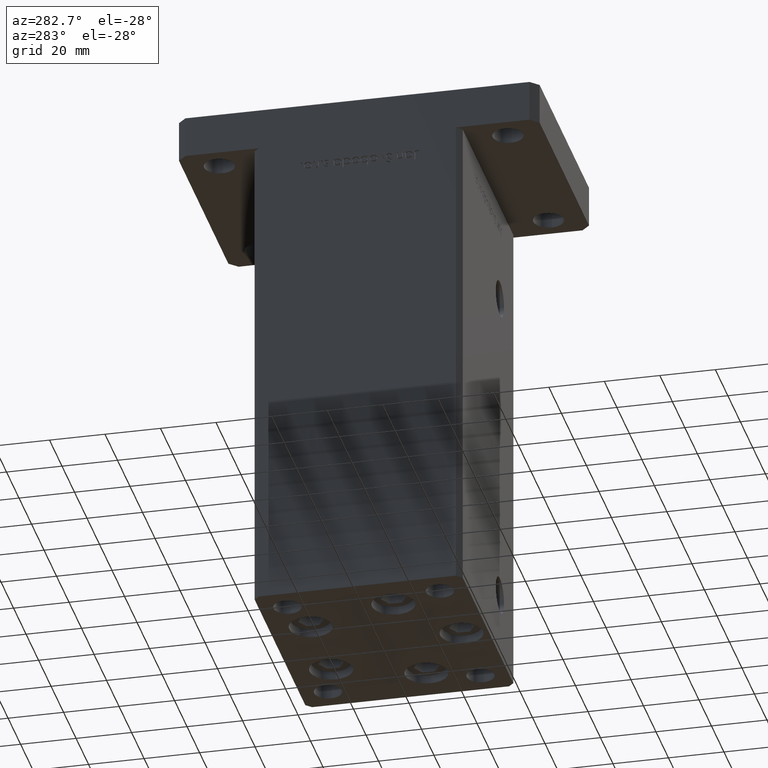
[diagram: clean part render]
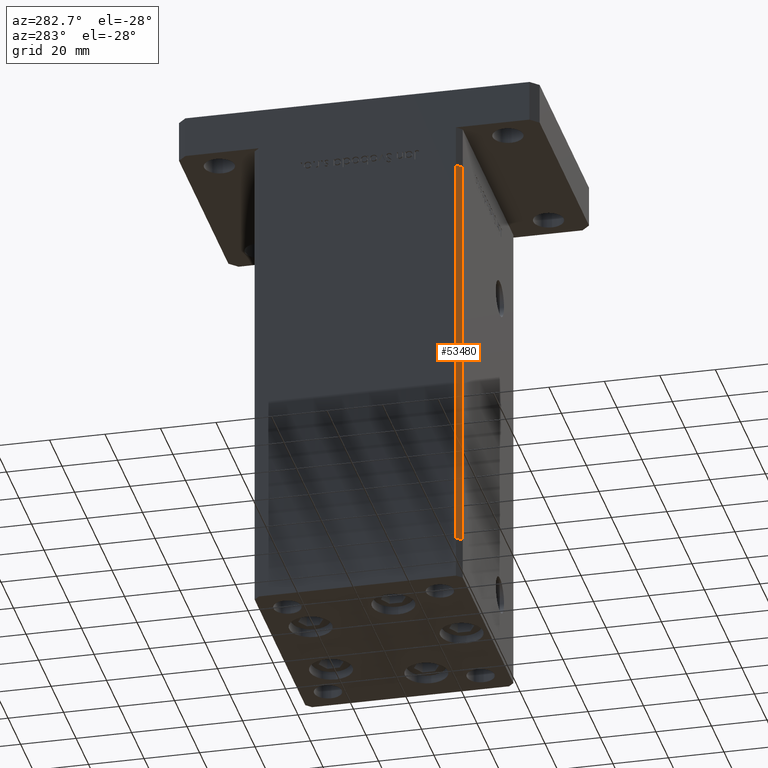
[diagram: same view with one face highlighted and labeled with its STEP entity id]
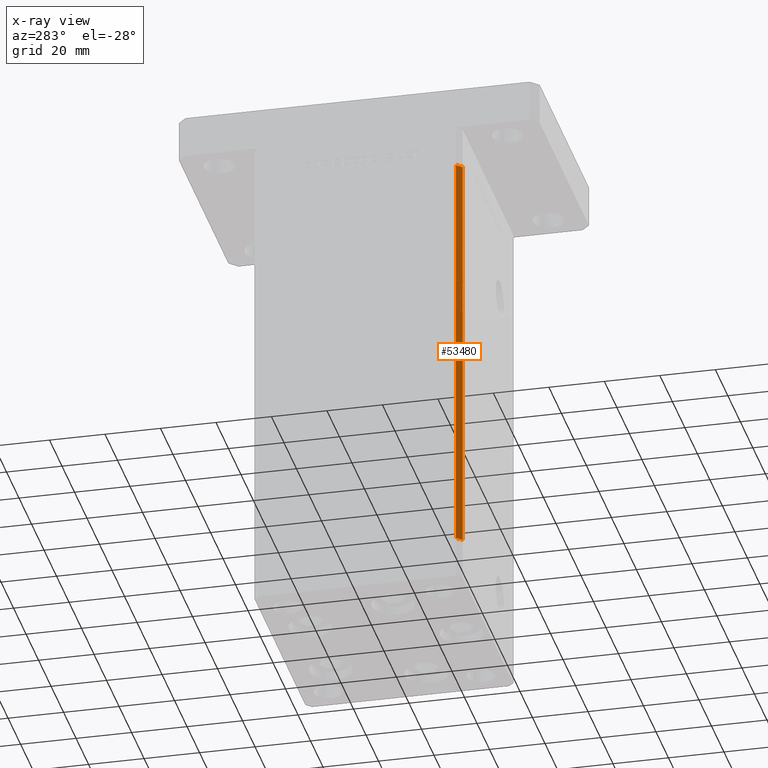
[diagram: x-ray of the same camera — body ghosted, the highlighted face saturated]
A machine part, auxiliary view. The second image highlights one B-rep face of the part: STEP entity #53480.
The next image is the same camera in x-ray: the body ghosted, the highlighted face saturated — about 0% of this face is hidden behind the body in this view.
In plain terms, the highlighted planar face has unit normal (0.7071, 0.7071, 0).
Its self-contained STEP definition (entity closure, byte-faithful):
#1934 = ORIENTED_EDGE ( 'NONE', *, *, #49933, .F. ) ;
#3314 = DIRECTION ( 'NONE',  ( -0.000000000000000000, -0.000000000000000000, -1.000000000000000000 ) ) ;
#3993 = VERTEX_POINT ( 'NONE', #4131 ) ;
#4131 = CARTESIAN_POINT ( 'NONE',  ( -40.49999999999998579, -37.50000000000000711, 0.000000000000000000 ) ) ;
#4585 = VERTEX_POINT ( 'NONE', #10269 ) ;
#4860 = CARTESIAN_POINT ( 'NONE',  ( -42.49999999999998579, -35.50000000000000711, 148.5000000000000000 ) ) ;
#10130 = DIRECTION ( 'NONE',  ( 0.7071067811865474617, -0.7071067811865474617, 0.000000000000000000 ) ) ;
#10269 = CARTESIAN_POINT ( 'NONE',  ( -42.49999999999998579, -35.50000000000000711, 148.5000000000000000 ) ) ;
#13724 = ORIENTED_EDGE ( 'NONE', *, *, #21692, .T. ) ;
#17073 = FACE_OUTER_BOUND ( 'NONE', #37005, .T. ) ;
#18003 = CARTESIAN_POINT ( 'NONE',  ( -42.49999999999998579, -35.50000000000000711, 0.000000000000000000 ) ) ;
#21692 = EDGE_CURVE ( 'NONE', #24587, #3993, #42981, .T. ) ;
#24116 = CARTESIAN_POINT ( 'NONE',  ( -42.49999999999998579, -35.50000000000000711, 0.000000000000000000 ) ) ;
#24587 = VERTEX_POINT ( 'NONE', #24116 ) ;
#24905 = AXIS2_PLACEMENT_3D ( 'NONE', #4860, #25219, #25482 ) ;
#25219 = DIRECTION ( 'NONE',  ( 0.7071067811865475727, 0.7071067811865475727, -0.000000000000000000 ) ) ;
#25482 = DIRECTION ( 'NONE',  ( -0.7071067811865474617, 0.7071067811865474617, 0.000000000000000000 ) ) ;
#26186 = DIRECTION ( 'NONE',  ( 0.7071067811865474617, -0.7071067811865474617, 0.000000000000000000 ) ) ;
#29443 = CARTESIAN_POINT ( 'NONE',  ( -42.49999999999998579, -35.50000000000000711, 148.5000000000000000 ) ) ;
#30802 = DIRECTION ( 'NONE',  ( -0.000000000000000000, -0.000000000000000000, -1.000000000000000000 ) ) ;
#31779 = LINE ( 'NONE', #32051, #32707 ) ;
#31808 = ORIENTED_EDGE ( 'NONE', *, *, #37899, .F. ) ;
#32051 = CARTESIAN_POINT ( 'NONE',  ( -42.49999999999998579, -35.50000000000000711, 148.5000000000000000 ) ) ;
#32707 = VECTOR ( 'NONE', #3314, 1000.000000000000000 ) ;
#35432 = LINE ( 'NONE', #38965, #41078 ) ;
#36741 = ORIENTED_EDGE ( 'NONE', *, *, #49611, .T. ) ;
#37005 = EDGE_LOOP ( 'NONE', ( #13724, #31808, #1934, #36741 ) ) ;
#37152 = PLANE ( 'NONE',  #24905 ) ;
#37899 = EDGE_CURVE ( 'NONE', #42684, #3993, #35432, .T. ) ;
#38965 = CARTESIAN_POINT ( 'NONE',  ( -40.49999999999998579, -37.50000000000000711, 148.5000000000000000 ) ) ;
#39066 = VECTOR ( 'NONE', #10130, 1000.000000000000114 ) ;
#41078 = VECTOR ( 'NONE', #30802, 1000.000000000000000 ) ;
#42684 = VERTEX_POINT ( 'NONE', #52959 ) ;
#42981 = LINE ( 'NONE', #18003, #39066 ) ;
#46591 = VECTOR ( 'NONE', #26186, 1000.000000000000114 ) ;
#46801 = LINE ( 'NONE', #29443, #46591 ) ;
#49611 = EDGE_CURVE ( 'NONE', #4585, #24587, #31779, .T. ) ;
#49933 = EDGE_CURVE ( 'NONE', #4585, #42684, #46801, .T. ) ;
#52959 = CARTESIAN_POINT ( 'NONE',  ( -40.49999999999998579, -37.50000000000000711, 148.5000000000000000 ) ) ;
#53480 = ADVANCED_FACE ( 'NONE', ( #17073 ), #37152, .F. ) ;